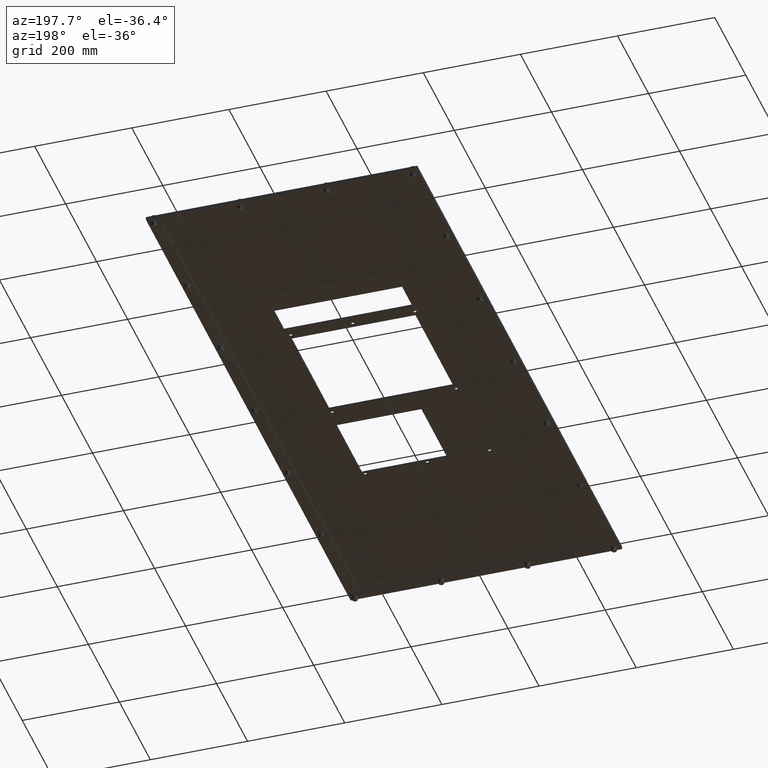
[diagram: clean part render]
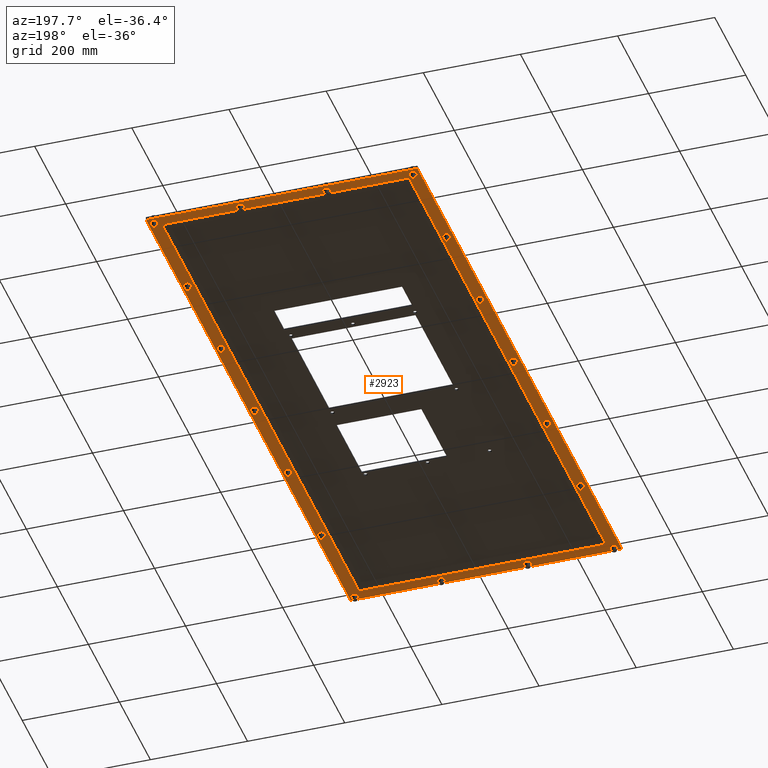
[diagram: same view with one face highlighted and labeled with its STEP entity id]
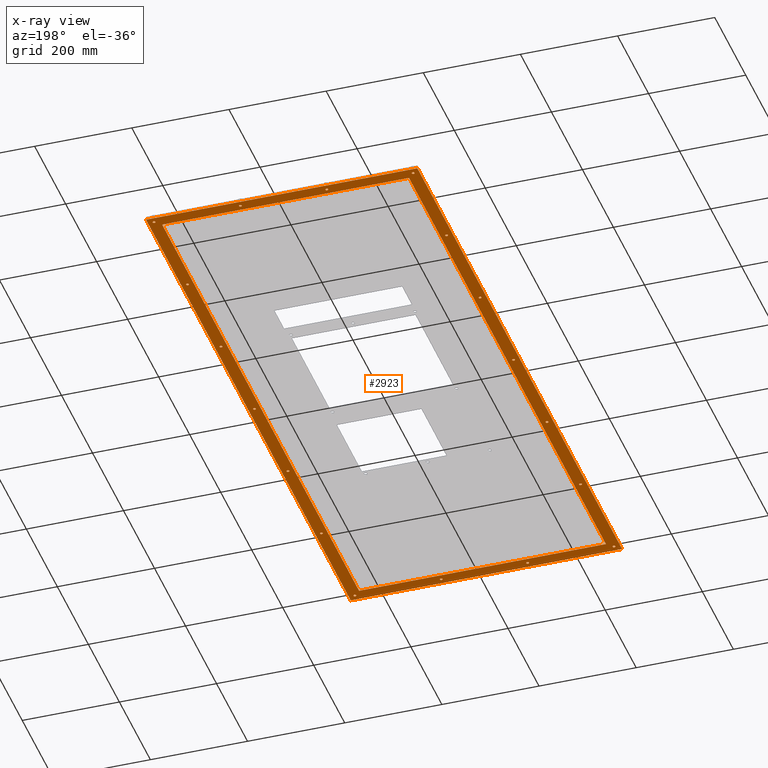
[diagram: x-ray of the same camera — body ghosted, the highlighted face saturated]
A machine part, auxiliary view. The second image highlights one B-rep face of the part: STEP entity #2923.
The next image is the same camera in x-ray: the body ghosted, the highlighted face saturated — about 0% of this face is hidden behind the body in this view.
In plain terms, the highlighted planar face has unit normal (0, 0, 1).
Its self-contained STEP definition (entity closure, byte-faithful):
#294=FACE_BOUND('',#907,.T.);
#295=FACE_BOUND('',#908,.T.);
#296=FACE_BOUND('',#909,.T.);
#297=FACE_BOUND('',#910,.T.);
#298=FACE_BOUND('',#911,.T.);
#299=FACE_BOUND('',#912,.T.);
#300=FACE_BOUND('',#913,.T.);
#301=FACE_BOUND('',#914,.T.);
#302=FACE_BOUND('',#915,.T.);
#303=FACE_BOUND('',#916,.T.);
#304=FACE_BOUND('',#917,.T.);
#305=FACE_BOUND('',#918,.T.);
#306=FACE_BOUND('',#919,.T.);
#307=FACE_BOUND('',#920,.T.);
#308=FACE_BOUND('',#921,.T.);
#309=FACE_BOUND('',#922,.T.);
#310=FACE_BOUND('',#923,.T.);
#311=FACE_BOUND('',#924,.T.);
#312=FACE_BOUND('',#925,.T.);
#397=CIRCLE('',#3119,0.109375);
#399=CIRCLE('',#3122,0.109375);
#401=CIRCLE('',#3125,0.109375);
#403=CIRCLE('',#3128,0.109375);
#405=CIRCLE('',#3131,0.109375);
#407=CIRCLE('',#3134,0.109375);
#409=CIRCLE('',#3137,0.109375);
#411=CIRCLE('',#3140,0.109375);
#413=CIRCLE('',#3143,0.109375);
#415=CIRCLE('',#3146,0.109375);
#417=CIRCLE('',#3149,0.109375);
#419=CIRCLE('',#3152,0.109375);
#421=CIRCLE('',#3155,0.109375);
#423=CIRCLE('',#3158,0.109375);
#425=CIRCLE('',#3161,0.109375);
#427=CIRCLE('',#3164,0.109375);
#429=CIRCLE('',#3167,0.109375);
#431=CIRCLE('',#3170,0.109375);
#624=FACE_OUTER_BOUND('',#906,.T.);
#906=EDGE_LOOP('',(#2268,#2269,#2270,#2271));
#907=EDGE_LOOP('',(#2272));
#908=EDGE_LOOP('',(#2273));
#909=EDGE_LOOP('',(#2274));
#910=EDGE_LOOP('',(#2275));
#911=EDGE_LOOP('',(#2276));
#912=EDGE_LOOP('',(#2277));
#913=EDGE_LOOP('',(#2278));
#914=EDGE_LOOP('',(#2279));
#915=EDGE_LOOP('',(#2280));
#916=EDGE_LOOP('',(#2281));
#917=EDGE_LOOP('',(#2282));
#918=EDGE_LOOP('',(#2283));
#919=EDGE_LOOP('',(#2284));
#920=EDGE_LOOP('',(#2285));
#921=EDGE_LOOP('',(#2286));
#922=EDGE_LOOP('',(#2287));
#923=EDGE_LOOP('',(#2288));
#924=EDGE_LOOP('',(#2289));
#925=EDGE_LOOP('',(#2290,#2291,#2292,#2293));
#1097=LINE('',#4529,#1262);
#1100=LINE('',#4535,#1265);
#1103=LINE('',#4541,#1268);
#1106=LINE('',#4545,#1271);
#1109=LINE('',#4553,#1274);
#1113=LINE('',#4560,#1278);
#1116=LINE('',#4566,#1281);
#1118=LINE('',#4569,#1283);
#1262=VECTOR('',#3715,50.);
#1265=VECTOR('',#3720,20.);
#1268=VECTOR('',#3725,50.);
#1271=VECTOR('',#3730,20.);
#1274=VECTOR('',#3735,52.);
#1278=VECTOR('',#3741,22.);
#1281=VECTOR('',#3746,52.);
#1283=VECTOR('',#3750,22.);
#1461=VERTEX_POINT('',#4433);
#1463=VERTEX_POINT('',#4438);
#1465=VERTEX_POINT('',#4443);
#1467=VERTEX_POINT('',#4448);
#1469=VERTEX_POINT('',#4453);
#1471=VERTEX_POINT('',#4458);
#1473=VERTEX_POINT('',#4463);
#1475=VERTEX_POINT('',#4468);
#1477=VERTEX_POINT('',#4473);
#1479=VERTEX_POINT('',#4478);
#1481=VERTEX_POINT('',#4483);
#1483=VERTEX_POINT('',#4488);
#1485=VERTEX_POINT('',#4493);
#1487=VERTEX_POINT('',#4498);
#1489=VERTEX_POINT('',#4503);
#1491=VERTEX_POINT('',#4508);
#1493=VERTEX_POINT('',#4513);
#1495=VERTEX_POINT('',#4518);
#1499=VERTEX_POINT('',#4526);
#1500=VERTEX_POINT('',#4528);
#1502=VERTEX_POINT('',#4534);
#1504=VERTEX_POINT('',#4540);
#1507=VERTEX_POINT('',#4550);
#1508=VERTEX_POINT('',#4552);
#1510=VERTEX_POINT('',#4558);
#1512=VERTEX_POINT('',#4564);
#1737=EDGE_CURVE('',#1461,#1461,#397,.T.);
#1739=EDGE_CURVE('',#1463,#1463,#399,.T.);
#1741=EDGE_CURVE('',#1465,#1465,#401,.T.);
#1743=EDGE_CURVE('',#1467,#1467,#403,.T.);
#1745=EDGE_CURVE('',#1469,#1469,#405,.T.);
#1747=EDGE_CURVE('',#1471,#1471,#407,.T.);
#1749=EDGE_CURVE('',#1473,#1473,#409,.T.);
#1751=EDGE_CURVE('',#1475,#1475,#411,.T.);
#1753=EDGE_CURVE('',#1477,#1477,#413,.T.);
#1755=EDGE_CURVE('',#1479,#1479,#415,.T.);
#1757=EDGE_CURVE('',#1481,#1481,#417,.T.);
#1759=EDGE_CURVE('',#1483,#1483,#419,.T.);
#1761=EDGE_CURVE('',#1485,#1485,#421,.T.);
#1763=EDGE_CURVE('',#1487,#1487,#423,.T.);
#1765=EDGE_CURVE('',#1489,#1489,#425,.T.);
#1767=EDGE_CURVE('',#1491,#1491,#427,.T.);
#1769=EDGE_CURVE('',#1493,#1493,#429,.T.);
#1771=EDGE_CURVE('',#1495,#1495,#431,.T.);
#1775=EDGE_CURVE('',#1500,#1499,#1097,.T.);
#1778=EDGE_CURVE('',#1502,#1500,#1100,.T.);
#1781=EDGE_CURVE('',#1504,#1502,#1103,.T.);
#1784=EDGE_CURVE('',#1499,#1504,#1106,.T.);
#1787=EDGE_CURVE('',#1508,#1507,#1109,.T.);
#1791=EDGE_CURVE('',#1507,#1510,#1113,.T.);
#1794=EDGE_CURVE('',#1510,#1512,#1116,.T.);
#1796=EDGE_CURVE('',#1512,#1508,#1118,.T.);
#2268=ORIENTED_EDGE('',*,*,#1796,.T.);
#2269=ORIENTED_EDGE('',*,*,#1787,.T.);
#2270=ORIENTED_EDGE('',*,*,#1791,.T.);
#2271=ORIENTED_EDGE('',*,*,#1794,.T.);
#2272=ORIENTED_EDGE('',*,*,#1737,.T.);
#2273=ORIENTED_EDGE('',*,*,#1739,.T.);
#2274=ORIENTED_EDGE('',*,*,#1741,.T.);
#2275=ORIENTED_EDGE('',*,*,#1743,.T.);
#2276=ORIENTED_EDGE('',*,*,#1745,.T.);
#2277=ORIENTED_EDGE('',*,*,#1747,.T.);
#2278=ORIENTED_EDGE('',*,*,#1749,.T.);
#2279=ORIENTED_EDGE('',*,*,#1751,.T.);
#2280=ORIENTED_EDGE('',*,*,#1753,.T.);
#2281=ORIENTED_EDGE('',*,*,#1755,.T.);
#2282=ORIENTED_EDGE('',*,*,#1757,.T.);
#2283=ORIENTED_EDGE('',*,*,#1759,.T.);
#2284=ORIENTED_EDGE('',*,*,#1761,.T.);
#2285=ORIENTED_EDGE('',*,*,#1763,.T.);
#2286=ORIENTED_EDGE('',*,*,#1765,.T.);
#2287=ORIENTED_EDGE('',*,*,#1767,.T.);
#2288=ORIENTED_EDGE('',*,*,#1769,.T.);
#2289=ORIENTED_EDGE('',*,*,#1771,.T.);
#2290=ORIENTED_EDGE('',*,*,#1775,.T.);
#2291=ORIENTED_EDGE('',*,*,#1784,.T.);
#2292=ORIENTED_EDGE('',*,*,#1781,.T.);
#2293=ORIENTED_EDGE('',*,*,#1778,.T.);
#2675=PLANE('',#3181);
#2923=ADVANCED_FACE('',(#624,#294,#295,#296,#297,#298,#299,#300,#301,#302,
#303,#304,#305,#306,#307,#308,#309,#310,#311,#312),#2675,.F.);
#3119=AXIS2_PLACEMENT_3D('',#4434,#3605,#3606);
#3122=AXIS2_PLACEMENT_3D('',#4439,#3611,#3612);
#3125=AXIS2_PLACEMENT_3D('',#4444,#3617,#3618);
#3128=AXIS2_PLACEMENT_3D('',#4449,#3623,#3624);
#3131=AXIS2_PLACEMENT_3D('',#4454,#3629,#3630);
#3134=AXIS2_PLACEMENT_3D('',#4459,#3635,#3636);
#3137=AXIS2_PLACEMENT_3D('',#4464,#3641,#3642);
#3140=AXIS2_PLACEMENT_3D('',#4469,#3647,#3648);
#3143=AXIS2_PLACEMENT_3D('',#4474,#3653,#3654);
#3146=AXIS2_PLACEMENT_3D('',#4479,#3659,#3660);
#3149=AXIS2_PLACEMENT_3D('',#4484,#3665,#3666);
#3152=AXIS2_PLACEMENT_3D('',#4489,#3671,#3672);
#3155=AXIS2_PLACEMENT_3D('',#4494,#3677,#3678);
#3158=AXIS2_PLACEMENT_3D('',#4499,#3683,#3684);
#3161=AXIS2_PLACEMENT_3D('',#4504,#3689,#3690);
#3164=AXIS2_PLACEMENT_3D('',#4509,#3695,#3696);
#3167=AXIS2_PLACEMENT_3D('',#4514,#3701,#3702);
#3170=AXIS2_PLACEMENT_3D('',#4519,#3707,#3708);
#3181=AXIS2_PLACEMENT_3D('',#4571,#3753,#3754);
#3605=DIRECTION('center_axis',(0.,0.,1.));
#3606=DIRECTION('ref_axis',(-1.,0.,0.));
#3611=DIRECTION('center_axis',(0.,0.,1.));
#3612=DIRECTION('ref_axis',(-1.,0.,0.));
#3617=DIRECTION('center_axis',(0.,0.,1.));
#3618=DIRECTION('ref_axis',(-1.,0.,0.));
#3623=DIRECTION('center_axis',(0.,0.,1.));
#3624=DIRECTION('ref_axis',(-1.,0.,0.));
#3629=DIRECTION('center_axis',(0.,0.,1.));
#3630=DIRECTION('ref_axis',(-1.,0.,0.));
#3635=DIRECTION('center_axis',(0.,0.,1.));
#3636=DIRECTION('ref_axis',(-1.,0.,0.));
#3641=DIRECTION('center_axis',(0.,0.,1.));
#3642=DIRECTION('ref_axis',(-1.,0.,0.));
#3647=DIRECTION('center_axis',(0.,0.,1.));
#3648=DIRECTION('ref_axis',(-1.,0.,0.));
#3653=DIRECTION('center_axis',(0.,0.,1.));
#3654=DIRECTION('ref_axis',(-1.,0.,0.));
#3659=DIRECTION('center_axis',(0.,0.,1.));
#3660=DIRECTION('ref_axis',(-1.,0.,0.));
#3665=DIRECTION('center_axis',(0.,0.,1.));
#3666=DIRECTION('ref_axis',(-1.,0.,0.));
#3671=DIRECTION('center_axis',(0.,0.,1.));
#3672=DIRECTION('ref_axis',(-1.,0.,0.));
#3677=DIRECTION('center_axis',(0.,0.,1.));
#3678=DIRECTION('ref_axis',(-1.,0.,0.));
#3683=DIRECTION('center_axis',(0.,0.,1.));
#3684=DIRECTION('ref_axis',(-1.,0.,0.));
#3689=DIRECTION('center_axis',(0.,0.,1.));
#3690=DIRECTION('ref_axis',(-1.,0.,0.));
#3695=DIRECTION('center_axis',(0.,0.,1.));
#3696=DIRECTION('ref_axis',(-1.,0.,0.));
#3701=DIRECTION('center_axis',(0.,0.,1.));
#3702=DIRECTION('ref_axis',(-1.,0.,0.));
#3707=DIRECTION('center_axis',(0.,0.,1.));
#3708=DIRECTION('ref_axis',(-1.,0.,0.));
#3715=DIRECTION('',(-1.67844740730732E-16,1.,0.));
#3720=DIRECTION('',(1.,5.59482469102441E-16,0.));
#3725=DIRECTION('',(5.59482469102441E-16,-1.,0.));
#3730=DIRECTION('',(-1.,0.,0.));
#3735=DIRECTION('',(3.22778347559101E-16,-1.,0.));
#3741=DIRECTION('',(-1.,0.,0.));
#3746=DIRECTION('',(-4.03472934448876E-16,1.,0.));
#3750=DIRECTION('',(1.,0.,0.));
#3753=DIRECTION('center_axis',(0.,0.,1.));
#3754=DIRECTION('ref_axis',(1.,0.,0.));
#4433=CARTESIAN_POINT('',(13.3394636570073,-34.4703914895966,0.));
#4434=CARTESIAN_POINT('Origin',(13.2300886570073,-34.4703914895966,0.));
#4438=CARTESIAN_POINT('',(6.33946365700733,-34.4703914895966,0.));
#4439=CARTESIAN_POINT('Origin',(6.23008865700733,-34.4703914895966,0.));
#4443=CARTESIAN_POINT('',(-0.66053634299267,-34.4703914895966,0.));
#4444=CARTESIAN_POINT('Origin',(-0.769911342992669,-34.4703914895966,0.));
#4448=CARTESIAN_POINT('',(-7.66053634299267,-34.4703914895966,0.));
#4449=CARTESIAN_POINT('Origin',(-7.76991134299267,-34.4703914895966,0.));
#4453=CARTESIAN_POINT('',(13.3394636570073,-25.9703914895966,0.));
#4454=CARTESIAN_POINT('Origin',(13.2300886570073,-25.9703914895966,0.));
#4458=CARTESIAN_POINT('',(-7.66053634299267,-25.9703914895966,0.));
#4459=CARTESIAN_POINT('Origin',(-7.76991134299267,-25.9703914895966,0.));
#4463=CARTESIAN_POINT('',(13.3394636570073,-17.4703914895966,0.));
#4464=CARTESIAN_POINT('Origin',(13.2300886570073,-17.4703914895966,0.));
#4468=CARTESIAN_POINT('',(-7.66053634299268,-17.4703914895966,0.));
#4469=CARTESIAN_POINT('Origin',(-7.76991134299268,-17.4703914895966,0.));
#4473=CARTESIAN_POINT('',(13.3394636570073,-8.97039148959656,0.));
#4474=CARTESIAN_POINT('Origin',(13.2300886570073,-8.97039148959656,0.));
#4478=CARTESIAN_POINT('',(-7.66053634299268,-8.97039148959656,0.));
#4479=CARTESIAN_POINT('Origin',(-7.76991134299268,-8.97039148959656,0.));
#4483=CARTESIAN_POINT('',(13.3394636570073,-0.470391489596561,0.));
#4484=CARTESIAN_POINT('Origin',(13.2300886570073,-0.470391489596561,0.));
#4488=CARTESIAN_POINT('',(-7.66053634299268,-0.470391489596561,0.));
#4489=CARTESIAN_POINT('Origin',(-7.76991134299268,-0.470391489596561,0.));
#4493=CARTESIAN_POINT('',(13.3394636570073,8.02960851040344,0.));
#4494=CARTESIAN_POINT('Origin',(13.2300886570073,8.02960851040344,0.));
#4498=CARTESIAN_POINT('',(-7.66053634299269,8.02960851040344,0.));
#4499=CARTESIAN_POINT('Origin',(-7.76991134299269,8.02960851040344,0.));
#4503=CARTESIAN_POINT('',(13.3394636570073,16.5296085104034,0.));
#4504=CARTESIAN_POINT('Origin',(13.2300886570073,16.5296085104034,0.));
#4508=CARTESIAN_POINT('',(6.33946365700731,16.5296085104034,0.));
#4509=CARTESIAN_POINT('Origin',(6.23008865700731,16.5296085104034,0.));
#4513=CARTESIAN_POINT('',(-0.66053634299269,16.5296085104034,0.));
#4514=CARTESIAN_POINT('Origin',(-0.76991134299269,16.5296085104034,0.));
#4518=CARTESIAN_POINT('',(-7.66053634299269,16.5296085104034,0.));
#4519=CARTESIAN_POINT('Origin',(-7.76991134299269,16.5296085104034,0.));
#4526=CARTESIAN_POINT('',(12.7300886570073,16.0296085104034,0.));
#4528=CARTESIAN_POINT('',(12.7300886570073,-33.9703914895966,0.));
#4529=CARTESIAN_POINT('',(12.7300886570073,3.52960851040344,0.));
#4534=CARTESIAN_POINT('',(-7.26991134299266,-33.9703914895966,0.));
#4535=CARTESIAN_POINT('',(7.73008865700733,-33.9703914895966,0.));
#4540=CARTESIAN_POINT('',(-7.26991134299269,16.0296085104034,0.));
#4541=CARTESIAN_POINT('',(-7.26991134299267,-21.4703914895966,0.));
#4545=CARTESIAN_POINT('',(-2.26991134299269,16.0296085104034,0.));
#4550=CARTESIAN_POINT('',(13.7300886570073,-34.9703914895966,0.));
#4552=CARTESIAN_POINT('',(13.7300886570073,17.0296085104034,0.));
#4553=CARTESIAN_POINT('',(13.7300886570073,17.0296085104034,0.));
#4558=CARTESIAN_POINT('',(-8.26991134299267,-34.9703914895966,0.));
#4560=CARTESIAN_POINT('',(13.7300886570073,-34.9703914895966,0.));
#4564=CARTESIAN_POINT('',(-8.26991134299269,17.0296085104034,0.));
#4566=CARTESIAN_POINT('',(-8.26991134299267,-34.9703914895966,0.));
#4569=CARTESIAN_POINT('',(-8.26991134299269,17.0296085104034,0.));
#4571=CARTESIAN_POINT('Origin',(2.73008865700732,-8.97039148959656,0.));